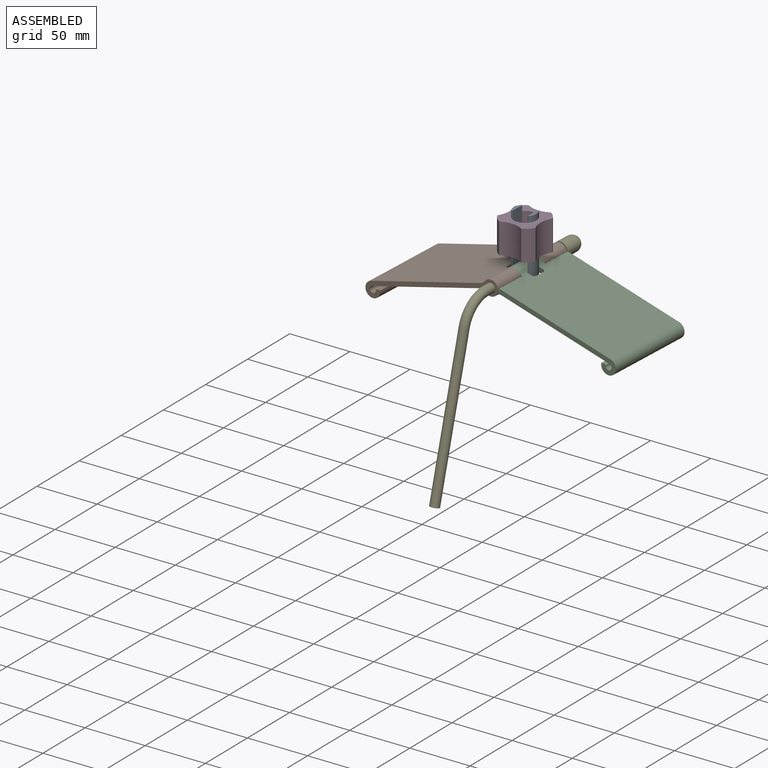
[diagram: assembled view]
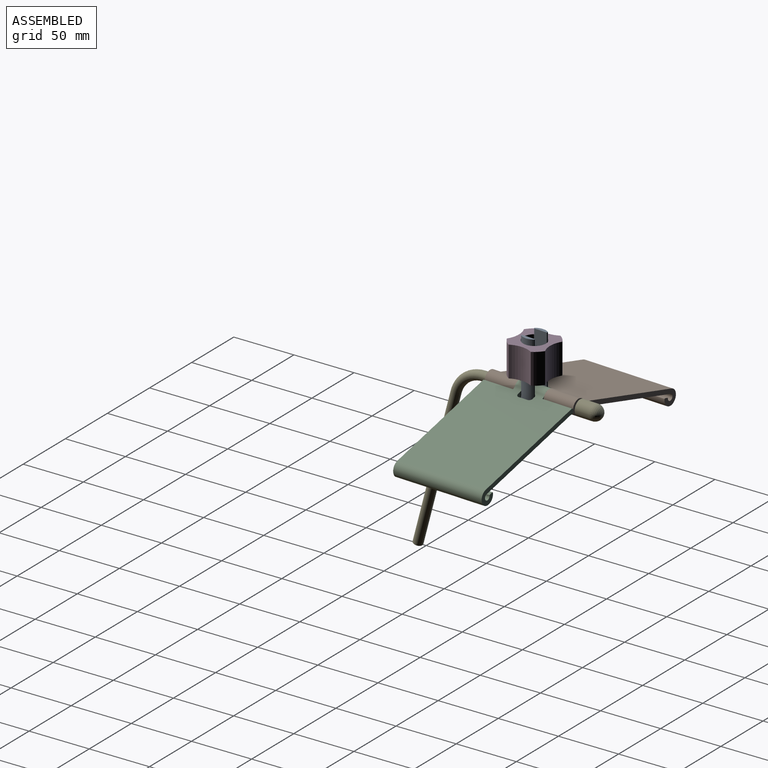
[diagram: assembled view, second angle]
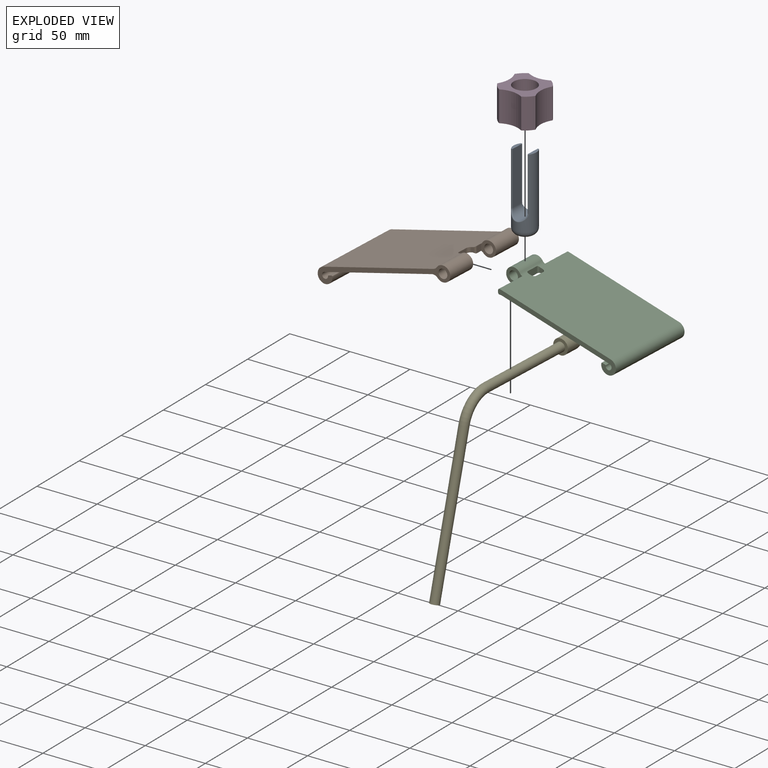
[diagram: exploded view]
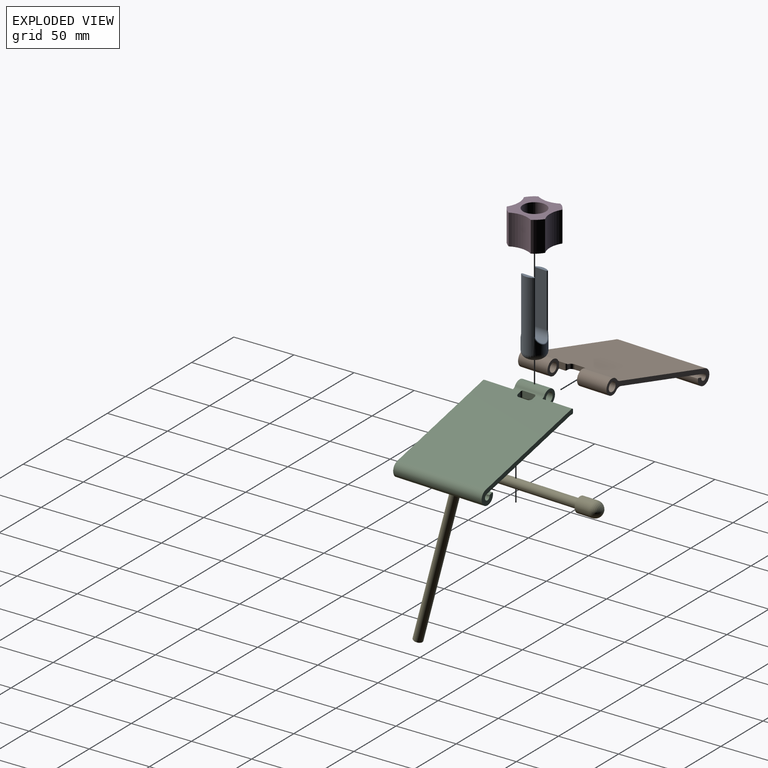
[diagram: exploded view, second angle]
ASSEMBLY  parts=5 mates=5
PART A: 14 faces, bbox 19.1x19.1x63.5 mm
  f0: plane 11.59x2.92mm, normal (0,0,1), area 26.4mm2, adj f1,f5,f10,f11
  f1: cylinder r=9.53mm len=58.42mm, axis (0,0,-1), area 1697.2mm2, adj f0,f2,f6,f8,f9,f10,f11,f12
  f2: plane 11.59x2.92mm, normal (0,0,1), area 26.4mm2, adj f1,f4,f8,f12
  f3: plane 8.89x8.89mm, normal (0,0,-1), area 62.1mm2, adj f6
  f4: plane 44.2x10.32mm, normal (1,0,0), area 456.1mm2, adj f2,f7,f8,f12
  f5: plane 44.2x10.32mm, normal (-1,0,0), area 456.1mm2, adj f0,f7,f10,f11
  f6: torus R=4.45mm, axis (0,0,1), area 385mm2, adj f1,f3
  f7: cylinder r=6.6mm len=17.78mm, axis (0,-1,0), area 296.7mm2, adj f4,f5,f9,f13
  f8: cylinder r=0.64mm len=44.2mm, axis (0,0,-1), area 70.8mm2, adj f1,f2,f4,f9
  f9: bspline ~15.51x8.29mm, area 29.7mm2, adj f1,f7,f8,f10
  f10: cylinder r=0.64mm len=44.2mm, axis (0,0,-1), area 70.8mm2, adj f0,f1,f5,f9
  f11: cylinder r=0.64mm len=44.2mm, axis (0,0,-1), area 70.8mm2, adj f0,f1,f5,f13
  f12: cylinder r=0.64mm len=44.2mm, axis (0,0,-1), area 70.8mm2, adj f1,f2,f4,f13
  f13: bspline ~15.51x8.29mm, area 29.7mm2, adj f1,f7,f11,f12
PART B: 28 faces, bbox 114.3x76.2x42.9 mm
  f0: plane 5.5x5.08mm, normal (1,0,0), area 27.9mm2, adj f12,f21,f22,f23
  f1: plane 95.02x76.2mm, normal (-0.26,0,0.97), area 7439.7mm2, adj f6,f10,f11,f15,f16,f17,f18,f19
  f2: plane 92.63x76.2mm, normal (0.26,0,-0.97), area 7269.7mm2, adj f8,f10,f11,f15,f16,f17,f18,f19
  f3: cylinder r=6.35mm len=25.4mm, axis (0,1,0), area 797.4mm2, adj f11,f12,f22,f23
  f4: cylinder r=6.35mm len=25.4mm, axis (0,1,0), area 797.4mm2, adj f10,f14,f24,f25
  f5: cylinder r=3.81mm len=25.4mm, axis (0,1,0), area 608mm2, adj f11,f12
  f6: cylinder r=6.35mm len=76.2mm, axis (0,1,0), area 2226.3mm2, adj f1,f10,f11,f26
  f7: plane 76.2x2.48mm, normal (-0.26,0,0.97), area 195.7mm2, adj f10,f11,f26,f27
  f8: cylinder r=2.54mm len=76.2mm, axis (0,1,0), area 873.1mm2, adj f2,f10,f11,f27
  f9: cylinder r=3.81mm len=25.4mm, axis (0,1,0), area 608mm2, adj f10,f14
  f10: plane 114.3x42.91mm, normal (0,-1,0), area 544.1mm2, adj f1,f2,f4,f6,f7,f8,f9,f24
  f11: plane 114.3x42.91mm, normal (0,1,0), area 544.1mm2, adj f1,f2,f3,f5,f6,f7,f8,f22
  f12: plane 12.7x12.7mm, normal (0,-1,0), area 82.7mm2, adj f0,f3,f5,f22,f23
  f13: plane 5.5x5.08mm, normal (1,0,0), area 27.9mm2, adj f14,f20,f24,f25
  f14: plane 12.7x12.7mm, normal (0,1,0), area 82.7mm2, adj f4,f9,f13,f24,f25
  f15: plane 4.67x2.54mm, normal (0,-1,0), area 10.3mm2, adj f1,f2,f18,f21,f22,f23
  f16: plane 7.62x3.94mm, normal (1,0,0), area 30.1mm2, adj f1,f2,f18,f19
  f17: plane 4.67x2.54mm, normal (0,1,0), area 10.3mm2, adj f1,f2,f19,f20,f24,f25
  f18: cylinder r=2.54mm len=4.63mm, axis (0,0,1), area 15.7mm2, adj f1,f2,f15,f16
  f19: cylinder r=2.54mm len=4.63mm, axis (0,0,-1), area 15.7mm2, adj f1,f2,f16,f17
  f20: cylinder r=1.27mm len=5.5mm, axis (0,0,1), area 10.1mm2, adj f13,f17,f24,f25
  f21: cylinder r=1.27mm len=5.5mm, axis (0,0,-1), area 10.1mm2, adj f0,f15,f22,f23
  f22: cylinder r=5.08mm len=31.75mm, axis (0,1,0), area 106.7mm2, adj f0,f1,f3,f11,f12,f15,f21
  f23: cylinder r=5.08mm len=31.75mm, axis (0,1,0), area 159.8mm2, adj f0,f2,f3,f11,f12,f15,f21
  f24: cylinder r=5.08mm len=31.75mm, axis (0,1,0), area 106.7mm2, adj f1,f4,f10,f13,f14,f17,f20
  f25: cylinder r=5.08mm len=31.75mm, axis (0,1,0), area 159.8mm2, adj f2,f4,f10,f13,f14,f17,f20
  f26: cylinder r=0.64mm len=76.2mm, axis (0,1,0), area 81.4mm2, adj f6,f7,f10,f11
  f27: cylinder r=0.64mm len=76.2mm, axis (0,1,0), area 66.3mm2, adj f7,f8,f10,f11
PART C: 29 faces, bbox 114.3x76.2x42.9 mm
  f0: plane 95.02x76.2mm, normal (-0.26,0,0.97), area 7439.7mm2, adj f3,f4,f5,f13,f14,f15,f17,f18
  f1: plane 92.63x76.2mm, normal (0.26,0,-0.97), area 7269.7mm2, adj f3,f4,f7,f13,f14,f15,f17,f18
  f2: cylinder r=6.35mm len=25.4mm, axis (0,1,0), area 797.4mm2, adj f8,f10,f21,f22
  f3: plane 101.6x38.07mm, normal (0,-1,0), area 459.9mm2, adj f0,f1,f5,f6,f7,f9,f21,f22
  f4: plane 101.6x38.07mm, normal (0,1,0), area 459.9mm2, adj f0,f1,f5,f6,f7,f11,f21,f22
  f5: cylinder r=6.35mm len=76.2mm, axis (0,1,0), area 2226.3mm2, adj f0,f3,f4,f23
  f6: plane 76.2x2.48mm, normal (-0.26,0,0.97), area 195.7mm2, adj f3,f4,f23,f24
  f7: cylinder r=2.54mm len=76.2mm, axis (0,1,0), area 873.1mm2, adj f1,f3,f4,f24
  f8: plane 14.35x12.7mm, normal (0,-1,0), area 84.2mm2, adj f2,f9,f12,f21,f22,f25,f27
  f9: plane 25.4x1.77mm, normal (1,0,0), area 45mm2, adj f3,f8,f25,f27
  f10: plane 14.35x12.7mm, normal (0,1,0), area 84.2mm2, adj f2,f11,f12,f21,f22,f26,f28
  f11: plane 25.4x1.77mm, normal (1,0,0), area 45mm2, adj f4,f10,f26,f28
  f12: cylinder r=3.81mm len=25.4mm, axis (0,1,0), area 608mm2, adj f8,f10
  f13: plane 4.67x2.54mm, normal (0,-1,0), area 10.3mm2, adj f0,f1,f17,f20,f21,f22
  f14: plane 7.62x3.94mm, normal (1,0,0), area 30.1mm2, adj f0,f1,f17,f18
  f15: plane 4.67x2.54mm, normal (0,1,0), area 10.3mm2, adj f0,f1,f18,f19,f21,f22
  f16: plane 10.16x5.5mm, normal (-1,0,0), area 55.9mm2, adj f19,f20,f21,f22
  f17: cylinder r=2.54mm len=4.63mm, axis (0,0,1), area 15.7mm2, adj f0,f1,f13,f14
  f18: cylinder r=2.54mm len=4.63mm, axis (0,0,-1), area 15.7mm2, adj f0,f1,f14,f15
  f19: cylinder r=1.27mm len=5.5mm, axis (0,0,1), area 10.1mm2, adj f15,f16,f21,f22
  f20: cylinder r=1.27mm len=5.5mm, axis (0,0,-1), area 10.1mm2, adj f13,f16,f21,f22
  f21: cylinder r=5.08mm len=76.2mm, axis (0,1,0), area 79.4mm2, adj f0,f2,f3,f4,f8,f10,f13,f15
  f22: cylinder r=5.08mm len=76.2mm, axis (0,1,0), area 193mm2, adj f1,f2,f3,f4,f8,f10,f13,f15
  f23: cylinder r=0.64mm len=76.2mm, axis (0,1,0), area 81.4mm2, adj f3,f4,f5,f6
  f24: cylinder r=0.64mm len=76.2mm, axis (0,1,0), area 66.3mm2, adj f3,f4,f6,f7
  f25: cylinder r=1.27mm len=25.4mm, axis (0,1,0), area 54.2mm2, adj f3,f8,f9,f22
  f26: cylinder r=1.27mm len=25.4mm, axis (0,1,0), area 54.2mm2, adj f4,f10,f11,f22
  f27: cylinder r=1.27mm len=25.4mm, axis (0,1,0), area 60.6mm2, adj f3,f8,f9,f21
  f28: cylinder r=1.27mm len=25.4mm, axis (0,1,0), area 60.6mm2, adj f4,f10,f11,f21
PART D: 11 faces, bbox 33x33x25.4 mm
  f0: cylinder r=19.21mm len=25.4mm, axis (0,0,-1), area 506.3mm2, adj f1,f8,f9,f10
  f1: cylinder r=19.05mm len=25.4mm, axis (0,0,-1), area 253.4mm2, adj f0,f2,f9,f10
  f2: cylinder r=19.21mm len=25.4mm, axis (0,0,-1), area 506.3mm2, adj f1,f3,f9,f10
  f3: cylinder r=19.05mm len=25.4mm, axis (0,0,-1), area 253.4mm2, adj f2,f4,f9,f10
  f4: cylinder r=19.21mm len=25.4mm, axis (0,0,-1), area 506.3mm2, adj f3,f5,f9,f10
  f5: cylinder r=19.05mm len=25.4mm, axis (0,0,-1), area 253.4mm2, adj f4,f6,f9,f10
  f6: cylinder r=19.21mm len=25.4mm, axis (0,0,-1), area 506.3mm2, adj f5,f8,f9,f10
  f7: cylinder r=9.53mm len=25.4mm, axis (0,0,-1), area 1520.1mm2, adj f9,f10
  f8: cylinder r=19.05mm len=25.4mm, axis (0,0,-1), area 253.4mm2, adj f0,f6,f9,f10
  f9: plane 33x33mm, normal (0,0,1), area 593.4mm2, adj f0,f1,f2,f3,f4,f5,f6,f7
  f10: plane 33x33mm, normal (0,0,-1), area 593.4mm2, adj f0,f1,f2,f3,f4,f5,f6,f7
PART E: 7 faces, bbox 12.7x162.7x148.8 mm
  f0: plane 7.62x7.36mm, normal (0,-0.26,-0.97), area 45.6mm2, adj f3
  f1: cylinder r=3.81mm len=82.55mm, axis (0,-1,0), area 1976.2mm2, adj f2,f5
  f2: torus R=25.4mm, axis (1,0,0), area 795.9mm2, adj f1,f3
  f3: cylinder r=3.81mm len=124.64mm, axis (0,-0.26,-0.97), area 3040.2mm2, adj f0,f2
  f4: cylinder r=6.35mm len=12.7mm, axis (0,-1,0), area 506.7mm2, adj f5,f6
  f5: plane 12.7x12.7mm, normal (0,-1,0), area 81.1mm2, adj f1,f4
  f6: sphere r=6.35mm, area 253.4mm2, adj f4
PLACE A rot(axis=(0,0,-1),2.8deg) t=(-7.34,40.01,-25.55)mm
PLACE B rot(axis=(0,0,-1),2.8deg) t=(-5.48,78.06,-6.25)mm
PLACE C rot(axis=(0,0,1),177.2deg) t=(-9.21,1.95,-6.25)mm
PLACE D rot(axis=(0,0,-1),2.8deg) t=(-7.34,40.01,7.72)mm
PLACE E rot(axis=(0,0,-1),2.8deg) t=(-5.41,79.46,-6.25)mm
MATE cylindrical D.f7 <-> A.f1  axis (0,0,-1) through (-7.34,40.01,33.12)mm
MATE slider B.f5 <-> C.f12  axis (0.05,1,0) through (-9.21,1.95,-6.25)mm
MATE slider A.f7 <-> C.f2  axis (-0.05,-1,0) through (-7.34,40.01,-6.25)mm
MATE planar C.f10 <-> B.f14  axis (-0.05,-1,0) through (-2.67,27.06,-2.75)mm
MATE slider E.f1 <-> B.f5  axis (-0.05,-1,0) through (-7.43,38.23,-6.25)mm
